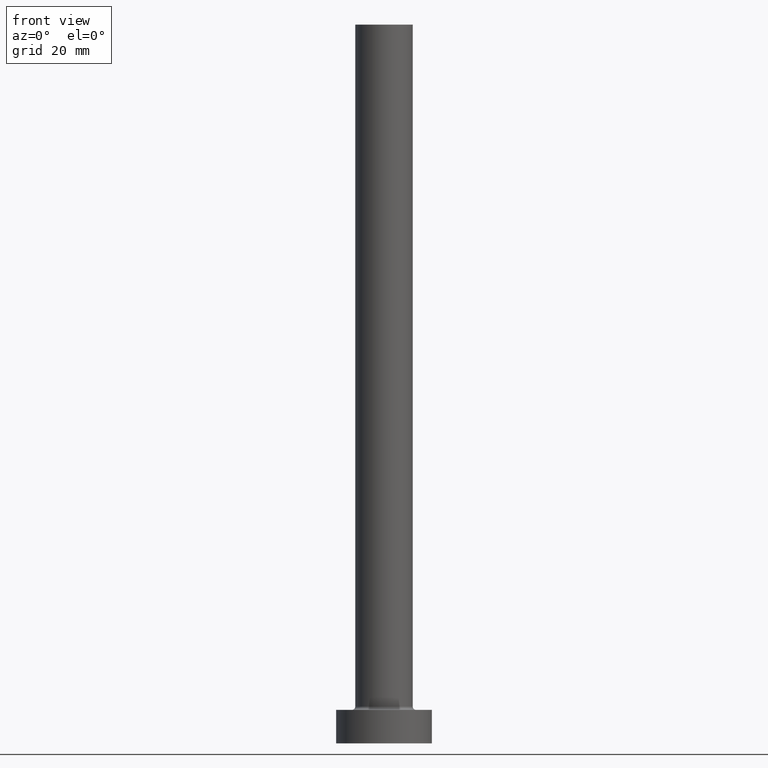
[diagram: clean part render]
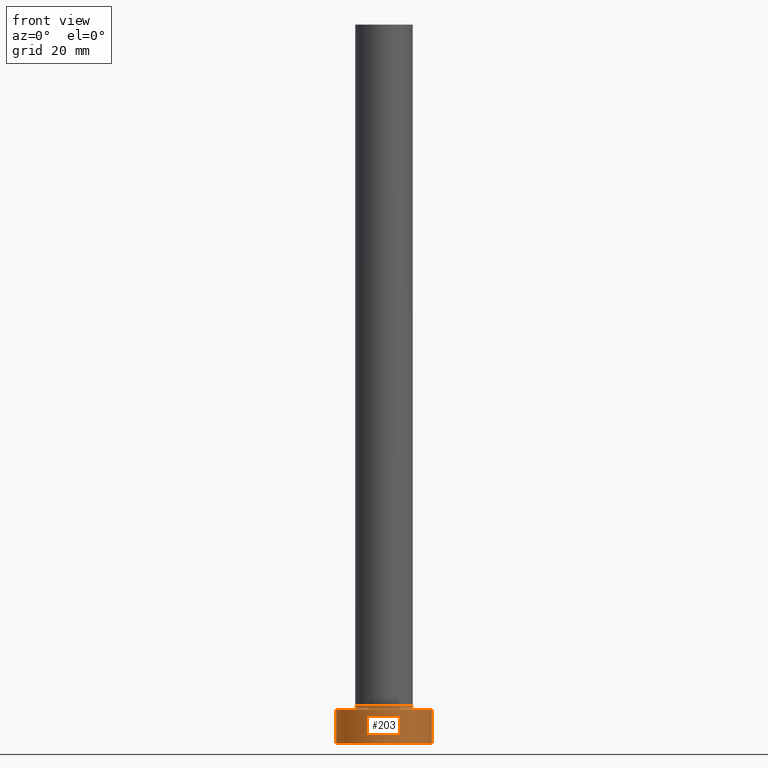
[diagram: same view with one face highlighted and labeled with its STEP entity id]
A machine part, front view. The second image highlights one B-rep face of the part: STEP entity #203.
In plain terms, the highlighted cylindrical surface (partial cylindrical patch) has radius 10 mm, axis along (-0, -0, -1).
Its self-contained STEP definition (entity closure, byte-faithful):
#1 = CARTESIAN_POINT ( 'NONE',  ( 10.00000000000000000, 1.224646799147353256E-15, 7.000000000000000000 ) ) ;
#12 = ORIENTED_EDGE ( 'NONE', *, *, #27, .T. ) ;
#23 = DIRECTION ( 'NONE',  ( 1.000000000000000000, 0.000000000000000000, 0.000000000000000000 ) ) ;
#27 = EDGE_CURVE ( 'NONE', #421, #305, #89, .T. ) ;
#37 = DIRECTION ( 'NONE',  ( 0.000000000000000000, 0.000000000000000000, 1.000000000000000000 ) ) ;
#42 = CARTESIAN_POINT ( 'NONE',  ( 10.00000000000000000, 1.224646799147353256E-15, 7.000000000000000000 ) ) ;
#80 = LINE ( 'NONE', #1, #457 ) ;
#89 = CIRCLE ( 'NONE', #144, 10.00000000000000000 ) ;
#94 = ORIENTED_EDGE ( 'NONE', *, *, #290, .F. ) ;
#144 = AXIS2_PLACEMENT_3D ( 'NONE', #384, #419, #23 ) ;
#160 = VERTEX_POINT ( 'NONE', #400 ) ;
#171 = FACE_OUTER_BOUND ( 'NONE', #380, .T. ) ;
#174 = DIRECTION ( 'NONE',  ( -0.000000000000000000, -0.000000000000000000, -1.000000000000000000 ) ) ;
#179 = LINE ( 'NONE', #212, #450 ) ;
#199 = AXIS2_PLACEMENT_3D ( 'NONE', #291, #37, #325 ) ;
#201 = ORIENTED_EDGE ( 'NONE', *, *, #334, .T. ) ;
#203 = ADVANCED_FACE ( 'NONE', ( #171 ), #358, .T. ) ;
#212 = CARTESIAN_POINT ( 'NONE',  ( -10.00000000000000000, 0.000000000000000000, 7.000000000000000000 ) ) ;
#220 = AXIS2_PLACEMENT_3D ( 'NONE', #396, #174, #390 ) ;
#249 = DIRECTION ( 'NONE',  ( -0.000000000000000000, -0.000000000000000000, -1.000000000000000000 ) ) ;
#287 = DIRECTION ( 'NONE',  ( -0.000000000000000000, -0.000000000000000000, -1.000000000000000000 ) ) ;
#290 = EDGE_CURVE ( 'NONE', #341, #305, #80, .T. ) ;
#291 = CARTESIAN_POINT ( 'NONE',  ( 0.000000000000000000, 0.000000000000000000, 7.000000000000000000 ) ) ;
#305 = VERTEX_POINT ( 'NONE', #359 ) ;
#308 = ORIENTED_EDGE ( 'NONE', *, *, #362, .F. ) ;
#325 = DIRECTION ( 'NONE',  ( 1.000000000000000000, 0.000000000000000000, 0.000000000000000000 ) ) ;
#331 = CARTESIAN_POINT ( 'NONE',  ( -10.00000000000000000, 0.000000000000000000, 0.000000000000000000 ) ) ;
#334 = EDGE_CURVE ( 'NONE', #160, #421, #179, .T. ) ;
#340 = CIRCLE ( 'NONE', #199, 10.00000000000000000 ) ;
#341 = VERTEX_POINT ( 'NONE', #42 ) ;
#358 = CYLINDRICAL_SURFACE ( 'NONE', #220, 10.00000000000000000 ) ;
#359 = CARTESIAN_POINT ( 'NONE',  ( 10.00000000000000000, 1.224646799147353256E-15, 0.000000000000000000 ) ) ;
#362 = EDGE_CURVE ( 'NONE', #160, #341, #340, .T. ) ;
#380 = EDGE_LOOP ( 'NONE', ( #94, #308, #201, #12 ) ) ;
#384 = CARTESIAN_POINT ( 'NONE',  ( 0.000000000000000000, 0.000000000000000000, 0.000000000000000000 ) ) ;
#390 = DIRECTION ( 'NONE',  ( -1.000000000000000000, 0.000000000000000000, 0.000000000000000000 ) ) ;
#396 = CARTESIAN_POINT ( 'NONE',  ( 0.000000000000000000, 0.000000000000000000, 7.000000000000000000 ) ) ;
#400 = CARTESIAN_POINT ( 'NONE',  ( -10.00000000000000000, 0.000000000000000000, 7.000000000000000000 ) ) ;
#419 = DIRECTION ( 'NONE',  ( 0.000000000000000000, 0.000000000000000000, 1.000000000000000000 ) ) ;
#421 = VERTEX_POINT ( 'NONE', #331 ) ;
#450 = VECTOR ( 'NONE', #287, 1000.000000000000000 ) ;
#457 = VECTOR ( 'NONE', #249, 1000.000000000000000 ) ;